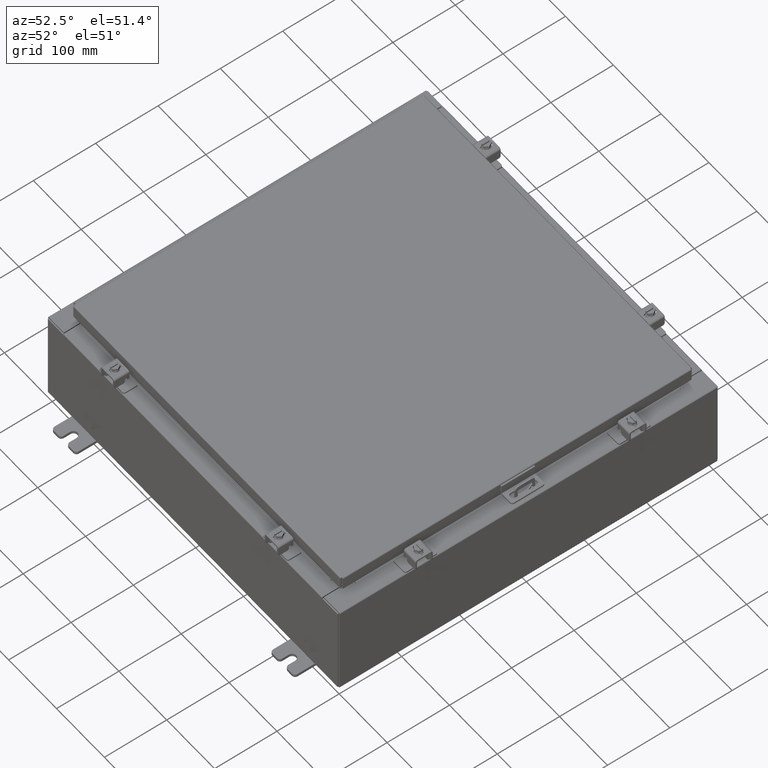
[diagram: clean part render]
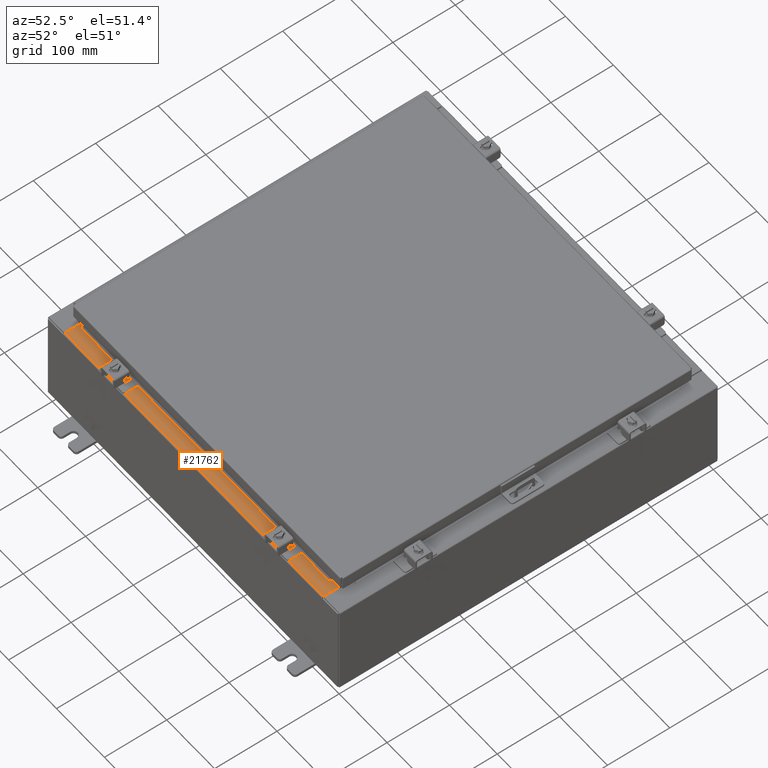
[diagram: same view with one face highlighted and labeled with its STEP entity id]
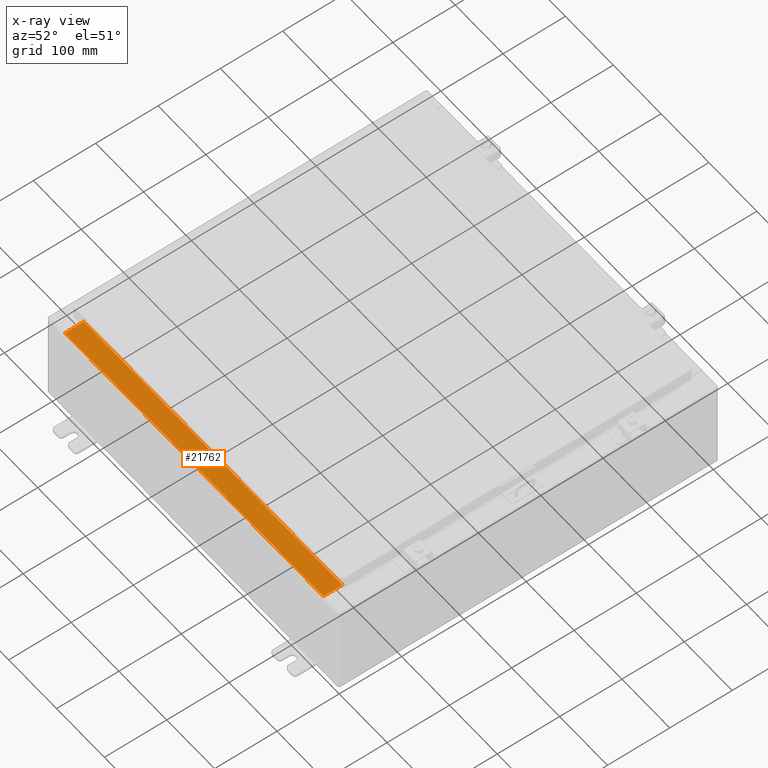
[diagram: x-ray of the same camera — body ghosted, the highlighted face saturated]
A machine part, auxiliary view. The second image highlights one B-rep face of the part: STEP entity #21762.
The next image is the same camera in x-ray: the body ghosted, the highlighted face saturated — about 0% of this face is hidden behind the body in this view.
In plain terms, the highlighted planar face has unit normal (-0, -0, 1).
Its self-contained STEP definition (entity closure, byte-faithful):
#1649 = DIRECTION ( 'NONE',  ( 3.225867722578196700E-016, 1.000000000000000000, -3.767692204910442100E-015 ) ) ;
#2161 = LINE ( 'NONE', #14273, #2928 ) ;
#2928 = VECTOR ( 'NONE', #1649, 39.37007874015748100 ) ;
#4322 = VERTEX_POINT ( 'NONE', #18691 ) ;
#4608 = DIRECTION ( 'NONE',  ( -1.000000000000000000, -3.225867722578232700E-016, -9.992007221626408900E-016 ) ) ;
#5445 = CARTESIAN_POINT ( 'NONE',  ( -10.63720000000000200, -0.08770000000000026400, 2.999999999999994200 ) ) ;
#7944 = CARTESIAN_POINT ( 'NONE',  ( 2.967058991427216100E-015, -0.08770000000000026400, 3.000000000000001800 ) ) ;
#8698 = VERTEX_POINT ( 'NONE', #26055 ) ;
#8720 = ORIENTED_EDGE ( 'NONE', *, *, #25996, .F. ) ;
#8915 = FACE_OUTER_BOUND ( 'NONE', #26068, .T. ) ;
#8995 = VECTOR ( 'NONE', #10453, 39.37007874015748100 ) ;
#9579 = CARTESIAN_POINT ( 'NONE',  ( 10.63720000000000400, -1.287300000000001200, 3.000000000000018200 ) ) ;
#9641 = VERTEX_POINT ( 'NONE', #5445 ) ;
#10453 = DIRECTION ( 'NONE',  ( -1.000000000000000000, -2.969047507327578400E-016, -9.992007221626408900E-016 ) ) ;
#12393 = EDGE_CURVE ( 'NONE', #21437, #9641, #2161, .T. ) ;
#12552 = CARTESIAN_POINT ( 'NONE',  ( 10.63720000000000200, -1.300299999999999300, 3.000000000000018200 ) ) ;
#14273 = CARTESIAN_POINT ( 'NONE',  ( -10.63720000000000200, -0.07470000000000015500, 2.999999999999994200 ) ) ;
#14501 = LINE ( 'NONE', #12552, #32445 ) ;
#14949 = DIRECTION ( 'NONE',  ( 9.992007221626408900E-016, 3.767692204910442100E-015, 1.000000000000000000 ) ) ;
#16555 = LINE ( 'NONE', #7944, #8995 ) ;
#17048 = LINE ( 'NONE', #9579, #22229 ) ;
#17397 = CARTESIAN_POINT ( 'NONE',  ( 2.997602163845178300E-015, 1.092739197465705300E-014, 3.000000000000000900 ) ) ;
#17645 = DIRECTION ( 'NONE',  ( -3.225867722578196700E-016, -1.000000000000000000, 3.767692204910442100E-015 ) ) ;
#18691 = CARTESIAN_POINT ( 'NONE',  ( 10.63720000000000200, -1.287300000000001200, 3.000000000000018200 ) ) ;
#19138 = AXIS2_PLACEMENT_3D ( 'NONE', #17397, #14949, #32756 ) ;
#21195 = EDGE_CURVE ( 'NONE', #8698, #4322, #14501, .T. ) ;
#21437 = VERTEX_POINT ( 'NONE', #31214 ) ;
#21762 = ADVANCED_FACE ( 'NONE', ( #8915 ), #25086, .T. ) ;
#22229 = VECTOR ( 'NONE', #4608, 39.37007874015748100 ) ;
#24940 = ORIENTED_EDGE ( 'NONE', *, *, #30589, .T. ) ;
#25086 = PLANE ( 'NONE',  #19138 ) ;
#25996 = EDGE_CURVE ( 'NONE', #4322, #21437, #17048, .T. ) ;
#26055 = CARTESIAN_POINT ( 'NONE',  ( 10.63720000000000400, -0.08770000000000026400, 3.000000000000013800 ) ) ;
#26068 = EDGE_LOOP ( 'NONE', ( #26862, #8720, #32004, #24940 ) ) ;
#26862 = ORIENTED_EDGE ( 'NONE', *, *, #12393, .F. ) ;
#30589 = EDGE_CURVE ( 'NONE', #8698, #9641, #16555, .T. ) ;
#31214 = CARTESIAN_POINT ( 'NONE',  ( -10.63720000000000200, -1.287299999999999200, 2.999999999999998700 ) ) ;
#32004 = ORIENTED_EDGE ( 'NONE', *, *, #21195, .F. ) ;
#32445 = VECTOR ( 'NONE', #17645, 39.37007874015748100 ) ;
#32756 = DIRECTION ( 'NONE',  ( -3.225867722578196200E-016, -1.000000000000000000, 3.767692204910442100E-015 ) ) ;